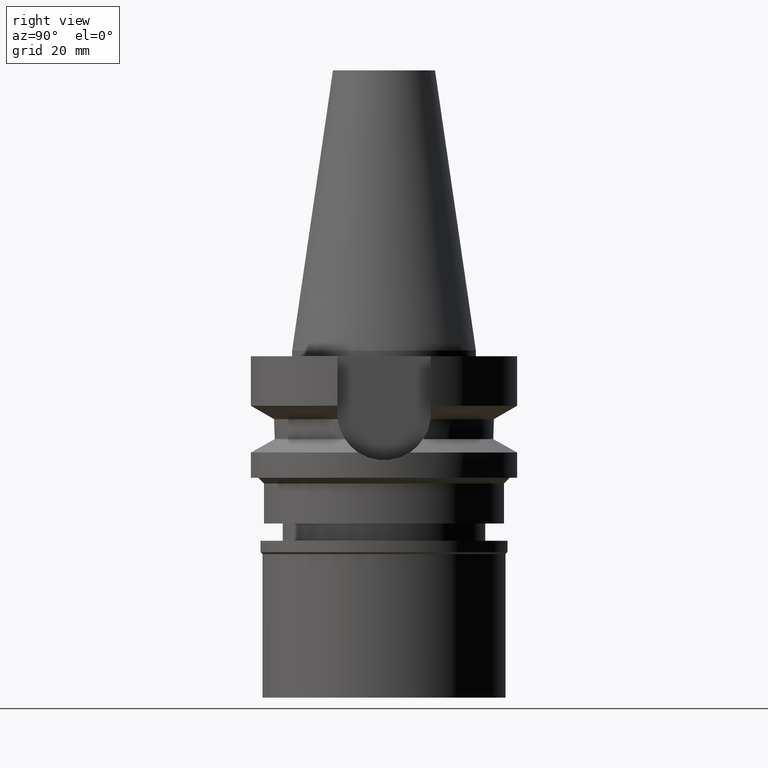
[diagram: clean part render]
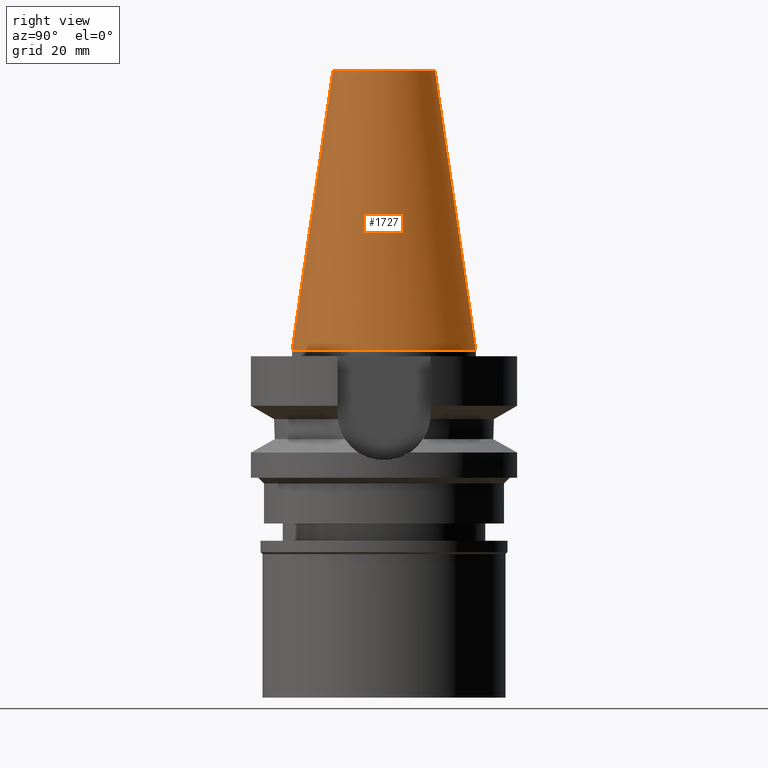
[diagram: same view with one face highlighted and labeled with its STEP entity id]
A machine part, right view. The second image highlights one B-rep face of the part: STEP entity #1727.
In plain terms, the highlighted conical surface has half-angle 8.297 deg.
Its self-contained STEP definition (entity closure, byte-faithful):
#10 = ORIENTED_EDGE ( 'NONE', *, *, #971, .F. ) ;
#188 = VECTOR ( 'NONE', #660, 1000.000000000000114 ) ;
#194 = VECTOR ( 'NONE', #1082, 1000.000000000000114 ) ;
#333 = AXIS2_PLACEMENT_3D ( 'NONE', #1185, #1667, #2847 ) ;
#376 = CIRCLE ( 'NONE', #1059, 15.87500000000000000 ) ;
#382 = LINE ( 'NONE', #2243, #194 ) ;
#474 = ORIENTED_EDGE ( 'NONE', *, *, #2723, .T. ) ;
#491 = CARTESIAN_POINT ( 'NONE',  ( 0.0000000000000000000, 0.0000000000000000000, -3.410605131648000255E-13 ) ) ;
#503 = FACE_OUTER_BOUND ( 'NONE', #986, .T. ) ;
#560 = ORIENTED_EDGE ( 'NONE', *, *, #2600, .F. ) ;
#623 = VERTEX_POINT ( 'NONE', #697 ) ;
#660 = DIRECTION ( 'NONE',  ( 0.0000000000000000000, -0.1443043893539925626, -0.9895333461855498891 ) ) ;
#697 = CARTESIAN_POINT ( 'NONE',  ( 0.0000000000000000000, -8.816791732783000768, 48.39999999999999858 ) ) ;
#734 = DIRECTION ( 'NONE',  ( 0.0000000000000000000, 0.0000000000000000000, -1.000000000000000000 ) ) ;
#971 = EDGE_CURVE ( 'NONE', #2445, #1563, #376, .T. ) ;
#986 = EDGE_LOOP ( 'NONE', ( #474, #1642, #10, #560 ) ) ;
#1015 = CIRCLE ( 'NONE', #1700, 8.816791732783000768 ) ;
#1059 = AXIS2_PLACEMENT_3D ( 'NONE', #491, #734, #2074 ) ;
#1082 = DIRECTION ( 'NONE',  ( 0.0000000000000000000, 0.1443043893539925626, -0.9895333461855498891 ) ) ;
#1185 = CARTESIAN_POINT ( 'NONE',  ( 0.0000000000000000000, 0.0000000000000000000, 24.19999999999999929 ) ) ;
#1256 = CONICAL_SURFACE ( 'NONE', #333, 12.34589586639000025, 0.1448099680379422438 ) ;
#1563 = VERTEX_POINT ( 'NONE', #2494 ) ;
#1642 = ORIENTED_EDGE ( 'NONE', *, *, #2035, .T. ) ;
#1667 = DIRECTION ( 'NONE',  ( 0.0000000000000000000, 0.0000000000000000000, -1.000000000000000000 ) ) ;
#1700 = AXIS2_PLACEMENT_3D ( 'NONE', #1851, #2355, #2346 ) ;
#1727 = ADVANCED_FACE ( 'NONE', ( #503 ), #1256, .T. ) ;
#1774 = CARTESIAN_POINT ( 'NONE',  ( 0.0000000000000000000, 8.816791732783000768, 48.39999999999999858 ) ) ;
#1851 = CARTESIAN_POINT ( 'NONE',  ( 0.0000000000000000000, 0.0000000000000000000, 48.39999999999999858 ) ) ;
#2035 = EDGE_CURVE ( 'NONE', #623, #1563, #2080, .T. ) ;
#2074 = DIRECTION ( 'NONE',  ( 0.0000000000000000000, 1.000000000000000000, 0.0000000000000000000 ) ) ;
#2080 = LINE ( 'NONE', #2262, #188 ) ;
#2243 = CARTESIAN_POINT ( 'NONE',  ( 0.0000000000000000000, 8.816791732783000768, 48.39999999999999858 ) ) ;
#2262 = CARTESIAN_POINT ( 'NONE',  ( 0.0000000000000000000, -8.816791732783000768, 48.39999999999999858 ) ) ;
#2306 = CARTESIAN_POINT ( 'NONE',  ( 0.0000000000000000000, 15.87500000000000000, -1.527666881883999820E-13 ) ) ;
#2346 = DIRECTION ( 'NONE',  ( 0.0000000000000000000, 1.000000000000000000, 0.0000000000000000000 ) ) ;
#2355 = DIRECTION ( 'NONE',  ( 0.0000000000000000000, 0.0000000000000000000, -1.000000000000000000 ) ) ;
#2445 = VERTEX_POINT ( 'NONE', #2306 ) ;
#2494 = CARTESIAN_POINT ( 'NONE',  ( 0.0000000000000000000, -15.87500000000000000, -1.527666881883999820E-13 ) ) ;
#2600 = EDGE_CURVE ( 'NONE', #2611, #2445, #382, .T. ) ;
#2611 = VERTEX_POINT ( 'NONE', #1774 ) ;
#2723 = EDGE_CURVE ( 'NONE', #2611, #623, #1015, .T. ) ;
#2847 = DIRECTION ( 'NONE',  ( 0.0000000000000000000, -1.000000000000000000, 0.0000000000000000000 ) ) ;